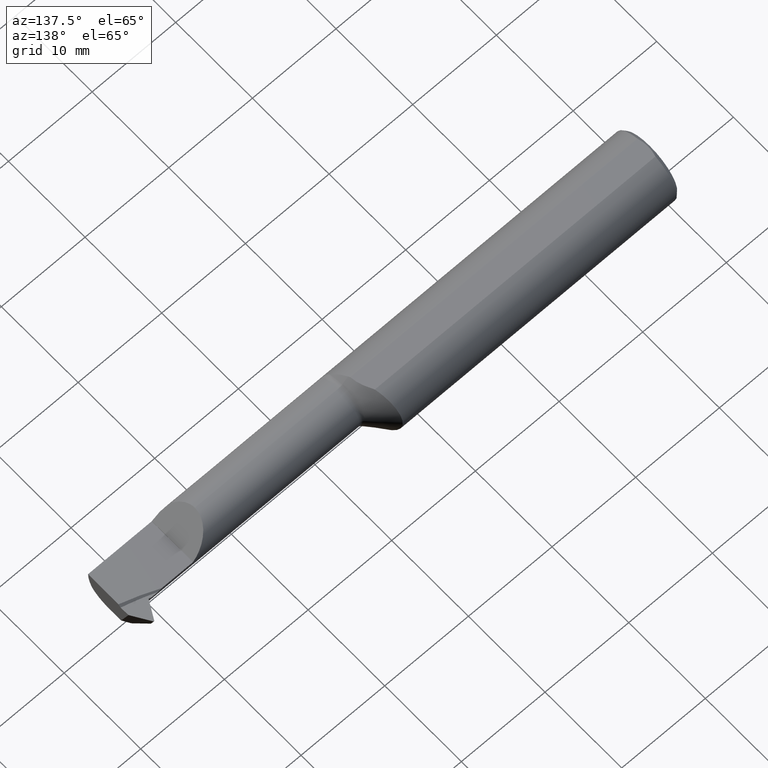
[diagram: clean part render]
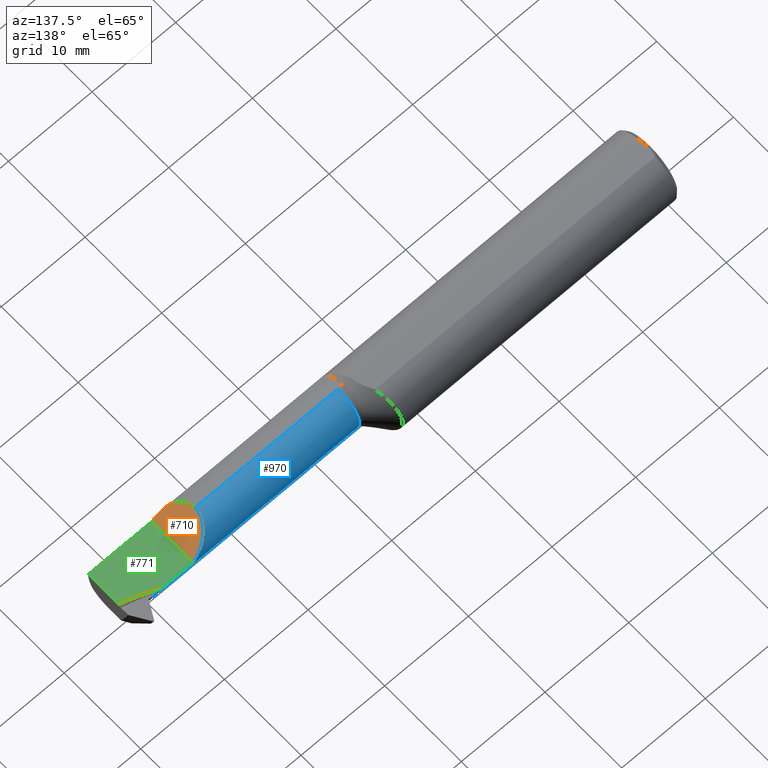
[diagram: same view with three faces highlighted in distinct colors, each labeled with its STEP entity id]
A machine part, auxiliary view with three faces highlighted in distinct colors.
Their STEP definitions:

[orange] entity #710 — the highlighted planar face has unit normal (-0.7071, 0, -0.7071).
#26 = CARTESIAN_POINT ( 'NONE',  ( 2.173926599881184973, -0.1559470758904249188, 0.02697340011881496288 ) ) ;
#39 = DIRECTION ( 'NONE',  ( -0.000000000000000000, 1.000000000000000000, -0.000000000000000000 ) ) ;
#54 = EDGE_CURVE ( 'NONE', #698, #702, #490, .T. ) ;
#76 = CARTESIAN_POINT ( 'NONE',  ( 2.200000000000000178, 0.05589635129138274122, 0.0009000000000000527760 ) ) ;
#124 = CARTESIAN_POINT ( 'NONE',  ( 2.200000000000000178, -0.1560974054877275197, 0.0009000000000000529929 ) ) ;
#154 = VERTEX_POINT ( 'NONE', #124 ) ;
#169 = DIRECTION ( 'NONE',  ( -0.7071067811865513475, 0.000000000000000000, 0.7071067811865435759 ) ) ;
#201 = CARTESIAN_POINT ( 'NONE',  ( 2.125827139386172515, -0.1368622504537206908, 0.07507286061382652254 ) ) ;
#267 = EDGE_CURVE ( 'NONE', #702, #289, #704, .T. ) ;
#289 = VERTEX_POINT ( 'NONE', #76 ) ;
#294 = CARTESIAN_POINT ( 'NONE',  ( 2.089899999999998759, -0.08664595039291325684, 0.1110000000000000292 ) ) ;
#311 = ORIENTED_EDGE ( 'NONE', *, *, #267, .F. ) ;
#346 = CARTESIAN_POINT ( 'NONE',  ( 2.125827139386172515, -0.1368622504537206908, 0.07507286061382652254 ) ) ;
#417 = EDGE_CURVE ( 'NONE', #154, #698, #751, .T. ) ;
#462 = FACE_OUTER_BOUND ( 'NONE', #746, .T. ) ;
#464 = CARTESIAN_POINT ( 'NONE',  ( 2.135397084422194780, 0.05537252664900876170, 0.06550291557780467400 ) ) ;
#490 =( BOUNDED_CURVE ( )  B_SPLINE_CURVE ( 3, ( #201, #699, #294, #945 ),
 .UNSPECIFIED., .F., .T. ) 
 B_SPLINE_CURVE_WITH_KNOTS ( ( 4, 4 ),
 ( 5.455160606174178639, 6.283185307179586232 ),
 .UNSPECIFIED. ) 
 CURVE ( )  GEOMETRIC_REPRESENTATION_ITEM ( )  RATIONAL_B_SPLINE_CURVE ( ( 1.000000000000000000, 0.9436760562907879901, 0.9436760562907879901, 1.000000000000000000 ) ) 
 REPRESENTATION_ITEM ( '' )  );
#521 = LINE ( 'NONE', #605, #591 ) ;
#549 = ORIENTED_EDGE ( 'NONE', *, *, #891, .T. ) ;
#558 = DIRECTION ( 'NONE',  ( -0.7071067811865436870, 0.000000000000000000, -0.7071067811865514585 ) ) ;
#563 = CARTESIAN_POINT ( 'NONE',  ( 2.125827139386172515, -0.1368622504537206908, 0.07507286061382652254 ) ) ;
#591 = VECTOR ( 'NONE', #39, 39.37007874015748143 ) ;
#605 = CARTESIAN_POINT ( 'NONE',  ( 2.200000000000000178, -1.050000000000000044, 0.0009000000000000529929 ) ) ;
#647 = CARTESIAN_POINT ( 'NONE',  ( 2.089899999999998759, 0.009505039226123366408, 0.1110000000000000431 ) ) ;
#698 = VERTEX_POINT ( 'NONE', #563 ) ;
#699 = CARTESIAN_POINT ( 'NONE',  ( 2.102590491667018391, -0.1155267122845506506, 0.09830950833298003622 ) ) ;
#702 = VERTEX_POINT ( 'NONE', #973 ) ;
#704 =( BOUNDED_CURVE ( )  B_SPLINE_CURVE ( 3, ( #884, #647, #464, #877 ),
 .UNSPECIFIED., .F., .T. ) 
 B_SPLINE_CURVE_WITH_KNOTS ( ( 4, 4 ),
 ( 0.000000000000000000, 1.562688129844407303 ),
 .UNSPECIFIED. ) 
 CURVE ( )  GEOMETRIC_REPRESENTATION_ITEM ( )  RATIONAL_B_SPLINE_CURVE ( ( 1.000000000000000000, 0.8066450953084864928, 0.8066450953084864928, 1.000000000000000000 ) ) 
 REPRESENTATION_ITEM ( '' )  );
#707 = CARTESIAN_POINT ( 'NONE',  ( 2.200000000000000178, -1.050000000000000044, 0.0009000000000000529929 ) ) ;
#710 = ADVANCED_FACE ( 'NONE', ( #462 ), #962, .F. ) ;
#742 = CARTESIAN_POINT ( 'NONE',  ( 2.200000000000000178, -0.1560974054877275197, 0.0009000000000000529929 ) ) ;
#746 = EDGE_LOOP ( 'NONE', ( #939, #944, #549, #311 ) ) ;
#751 =( BOUNDED_CURVE ( )  B_SPLINE_CURVE ( 3, ( #742, #26, #901, #346 ),
 .UNSPECIFIED., .F., .T. ) 
 B_SPLINE_CURVE_WITH_KNOTS ( ( 4, 4 ),
 ( 4.718154547241086405, 5.214101826882459711 ),
 .UNSPECIFIED. ) 
 CURVE ( )  GEOMETRIC_REPRESENTATION_ITEM ( )  RATIONAL_B_SPLINE_CURVE ( ( 1.000000000000000000, 0.9796078411043952494, 0.9796078411043952494, 1.000000000000000000 ) ) 
 REPRESENTATION_ITEM ( '' )  );
#877 = CARTESIAN_POINT ( 'NONE',  ( 2.200000000000000178, 0.05589635129138274122, 0.0009000000000000527760 ) ) ;
#884 = CARTESIAN_POINT ( 'NONE',  ( 2.089899999999998759, -0.05509999999999982967, 0.1110000000000000292 ) ) ;
#891 = EDGE_CURVE ( 'NONE', #154, #289, #521, .T. ) ;
#901 = CARTESIAN_POINT ( 'NONE',  ( 2.148687636049084304, -0.1494018870141901323, 0.05221236395091508747 ) ) ;
#939 = ORIENTED_EDGE ( 'NONE', *, *, #54, .F. ) ;
#944 = ORIENTED_EDGE ( 'NONE', *, *, #417, .F. ) ;
#945 = CARTESIAN_POINT ( 'NONE',  ( 2.089899999999998759, -0.05509999999999982967, 0.1110000000000000292 ) ) ;
#962 = PLANE ( 'NONE',  #1015 ) ;
#973 = CARTESIAN_POINT ( 'NONE',  ( 2.089899999999998759, -0.05509999999999982967, 0.1110000000000000292 ) ) ;
#1015 = AXIS2_PLACEMENT_3D ( 'NONE', #707, #558, #169 ) ;

[blue] entity #970 — the highlighted cylindrical surface (edge-blend (fillet) strip) has radius 2.8194 mm, axis along (-1, -0, -0).
#1 = EDGE_CURVE ( 'NONE', #804, #269, #841, .T. ) ;
#4 = VERTEX_POINT ( 'NONE', #954 ) ;
#20 = ORIENTED_EDGE ( 'NONE', *, *, #651, .F. ) ;
#29 = ORIENTED_EDGE ( 'NONE', *, *, #723, .T. ) ;
#30 = CARTESIAN_POINT ( 'NONE',  ( 2.200000000000000178, 0.05590000000000017871, -6.429183357567478880E-17 ) ) ;
#43 = CARTESIAN_POINT ( 'NONE',  ( 1.405000000000000249, -0.05509999999999982967, 0.000000000000000000 ) ) ;
#65 = ORIENTED_EDGE ( 'NONE', *, *, #1, .T. ) ;
#67 =( BOUNDED_CURVE ( )  B_SPLINE_CURVE ( 3, ( #115, #670, #197, #819 ),
 .UNSPECIFIED., .F., .T. ) 
 B_SPLINE_CURVE_WITH_KNOTS ( ( 4, 4 ),
 ( 1.160762633150994816, 1.510701071380387894 ),
 .UNSPECIFIED. ) 
 CURVE ( )  GEOMETRIC_REPRESENTATION_ITEM ( )  RATIONAL_B_SPLINE_CURVE ( ( 1.000000000000000000, 0.9898212650940335644, 0.9898212650940335644, 1.000000000000000000 ) ) 
 REPRESENTATION_ITEM ( '' )  );
#76 = CARTESIAN_POINT ( 'NONE',  ( 2.200000000000000178, 0.05589635129138274122, 0.0009000000000000527760 ) ) ;
#89 = EDGE_CURVE ( 'NONE', #384, #620, #543, .T. ) ;
#95 = CARTESIAN_POINT ( 'NONE',  ( 1.405000000000000249, -0.05509999999999980885, -0.1110000000000000292 ) ) ;
#115 = CARTESIAN_POINT ( 'NONE',  ( 2.392011247420416264, 0.04669892047817528202, -0.04424906540796296611 ) ) ;
#133 = VECTOR ( 'NONE', #418, 39.37007874015748143 ) ;
#134 = ORIENTED_EDGE ( 'NONE', *, *, #267, .T. ) ;
#152 = DIRECTION ( 'NONE',  ( -1.000000000000000000, -0.000000000000000000, -0.000000000000000000 ) ) ;
#163 = CARTESIAN_POINT ( 'NONE',  ( 1.415355339059327200, -0.05509999999999982967, 0.1110000000000000292 ) ) ;
#176 = DIRECTION ( 'NONE',  ( 0.000000000000000000, 0.000000000000000000, 1.000000000000000000 ) ) ;
#178 = LINE ( 'NONE', #95, #133 ) ;
#197 = CARTESIAN_POINT ( 'NONE',  ( 2.396569062922643045, 0.05491800274302387208, -0.01965729358832224785 ) ) ;
#203 =( BOUNDED_CURVE ( )  B_SPLINE_CURVE ( 3, ( #802, #968, #722, #303 ),
 .UNSPECIFIED., .F., .T. ) 
 B_SPLINE_CURVE_WITH_KNOTS ( ( 4, 4 ),
 ( 3.324852225049197862, 4.485614858200198896 ),
 .UNSPECIFIED. ) 
 CURVE ( )  GEOMETRIC_REPRESENTATION_ITEM ( )  RATIONAL_B_SPLINE_CURVE ( ( 1.000000000000000000, 0.8908357456650484174, 0.8908357456650484174, 1.000000000000000000 ) ) 
 REPRESENTATION_ITEM ( '' )  );
#212 = DIRECTION ( 'NONE',  ( 0.000000000000000000, 0.000000000000000000, 1.000000000000000000 ) ) ;
#231 = VERTEX_POINT ( 'NONE', #638 ) ;
#234 = CARTESIAN_POINT ( 'NONE',  ( 2.354114187087922971, 0.05590000000000019259, -0.002304473512366039811 ) ) ;
#248 = EDGE_CURVE ( 'NONE', #702, #269, #569, .T. ) ;
#267 = EDGE_CURVE ( 'NONE', #702, #289, #704, .T. ) ;
#268 = DIRECTION ( 'NONE',  ( -1.000000000000000000, -0.000000000000000000, -0.000000000000000000 ) ) ;
#269 = VERTEX_POINT ( 'NONE', #163 ) ;
#289 = VERTEX_POINT ( 'NONE', #76 ) ;
#299 = ORIENTED_EDGE ( 'NONE', *, *, #672, .T. ) ;
#303 = CARTESIAN_POINT ( 'NONE',  ( 2.410890140113939317, 0.04669892047817530978, -0.04424906540796293836 ) ) ;
#320 = DIRECTION ( 'NONE',  ( 1.000000000000000000, 0.000000000000000000, 0.000000000000000000 ) ) ;
#337 = DIRECTION ( 'NONE',  ( 1.000000000000000000, 0.000000000000000000, 0.000000000000000000 ) ) ;
#340 = EDGE_CURVE ( 'NONE', #231, #889, #67, .T. ) ;
#353 = EDGE_CURVE ( 'NONE', #448, #889, #655, .T. ) ;
#354 = ORIENTED_EDGE ( 'NONE', *, *, #353, .T. ) ;
#356 = VECTOR ( 'NONE', #864, 39.37007874015748143 ) ;
#361 = FACE_OUTER_BOUND ( 'NONE', #963, .T. ) ;
#362 = CARTESIAN_POINT ( 'NONE',  ( 2.348800091824888359, 0.05590000000000020647, -3.145391494286492686E-17 ) ) ;
#384 = VERTEX_POINT ( 'NONE', #30 ) ;
#411 = AXIS2_PLACEMENT_3D ( 'NONE', #43, #1007, #212 ) ;
#418 = DIRECTION ( 'NONE',  ( -1.000000000000000000, -0.000000000000000000, -0.000000000000000000 ) ) ;
#440 = EDGE_CURVE ( 'NONE', #735, #804, #178, .T. ) ;
#448 = VERTEX_POINT ( 'NONE', #509 ) ;
#464 = CARTESIAN_POINT ( 'NONE',  ( 2.135397084422194780, 0.05537252664900876170, 0.06550291557780467400 ) ) ;
#474 = CARTESIAN_POINT ( 'NONE',  ( 2.348800091824888359, 0.05590000000000020647, -3.145391494286492686E-17 ) ) ;
#480 = ORIENTED_EDGE ( 'NONE', *, *, #340, .F. ) ;
#486 = ORIENTED_EDGE ( 'NONE', *, *, #248, .F. ) ;
#504 = VECTOR ( 'NONE', #337, 39.37007874015748143 ) ;
#509 = CARTESIAN_POINT ( 'NONE',  ( 2.364870255512066421, 0.05569962540964205899, -0.006666559013692374344 ) ) ;
#543 = LINE ( 'NONE', #764, #356 ) ;
#569 = LINE ( 'NONE', #1042, #1036 ) ;
#587 = ORIENTED_EDGE ( 'NONE', *, *, #440, .T. ) ;
#620 = VERTEX_POINT ( 'NONE', #362 ) ;
#624 = CARTESIAN_POINT ( 'NONE',  ( 2.364870255512066421, 0.05569962540964205899, -0.006666559013692374344 ) ) ;
#627 = CARTESIAN_POINT ( 'NONE',  ( 1.415355339059327200, -0.05509999999999982967, 0.000000000000000000 ) ) ;
#636 = CARTESIAN_POINT ( 'NONE',  ( 2.359472443399954766, 0.05582854477049873504, -0.004523891880373755170 ) ) ;
#638 = CARTESIAN_POINT ( 'NONE',  ( 2.392011247420416264, 0.04669892047817528202, -0.04424906540796296611 ) ) ;
#647 = CARTESIAN_POINT ( 'NONE',  ( 2.089899999999998759, 0.009505039226123366408, 0.1110000000000000431 ) ) ;
#651 = EDGE_CURVE ( 'NONE', #4, #231, #718, .T. ) ;
#655 = LINE ( 'NONE', #666, #504 ) ;
#660 = AXIS2_PLACEMENT_3D ( 'NONE', #627, #320, #801 ) ;
#666 = CARTESIAN_POINT ( 'NONE',  ( 1.405000000000000249, 0.05569962540964207287, -0.006666559013692298016 ) ) ;
#670 = CARTESIAN_POINT ( 'NONE',  ( 2.394223351265098998, 0.05188691512856393601, -0.03231362112260029174 ) ) ;
#672 = EDGE_CURVE ( 'NONE', #620, #448, #730, .T. ) ;
#673 = ORIENTED_EDGE ( 'NONE', *, *, #89, .T. ) ;
#676 = CIRCLE ( 'NONE', #688, 0.1110000000000000292 ) ;
#688 = AXIS2_PLACEMENT_3D ( 'NONE', #1040, #268, #176 ) ;
#701 = CARTESIAN_POINT ( 'NONE',  ( 1.405000000000000249, 0.04669892047817530284, -0.04424906540796293836 ) ) ;
#702 = VERTEX_POINT ( 'NONE', #973 ) ;
#704 =( BOUNDED_CURVE ( )  B_SPLINE_CURVE ( 3, ( #884, #647, #464, #877 ),
 .UNSPECIFIED., .F., .T. ) 
 B_SPLINE_CURVE_WITH_KNOTS ( ( 4, 4 ),
 ( 0.000000000000000000, 1.562688129844407303 ),
 .UNSPECIFIED. ) 
 CURVE ( )  GEOMETRIC_REPRESENTATION_ITEM ( )  RATIONAL_B_SPLINE_CURVE ( ( 1.000000000000000000, 0.8066450953084864928, 0.8066450953084864928, 1.000000000000000000 ) ) 
 REPRESENTATION_ITEM ( '' )  );
#718 = LINE ( 'NONE', #701, #756 ) ;
#722 = CARTESIAN_POINT ( 'NONE',  ( 2.415503602610843625, 0.02854094621532835691, -0.08602310427151964312 ) ) ;
#723 = EDGE_CURVE ( 'NONE', #289, #384, #676, .T. ) ;
#730 = B_SPLINE_CURVE_WITH_KNOTS ( 'NONE', 3,
 ( #474, #234, #636, #624 ),
 .UNSPECIFIED., .F., .F.,
 ( 4, 4 ),
 ( 0.01393134452528264206, 0.01437220969035480668 ),
 .UNSPECIFIED. ) ;
#735 = VERTEX_POINT ( 'NONE', #833 ) ;
#753 = CARTESIAN_POINT ( 'NONE',  ( 2.398976753261663486, 0.05569962540964209369, -0.006666559013692291077 ) ) ;
#756 = VECTOR ( 'NONE', #152, 39.37007874015748143 ) ;
#764 = CARTESIAN_POINT ( 'NONE',  ( 1.405000000000000249, 0.05590000000000019953, -6.429183357567480113E-17 ) ) ;
#801 = DIRECTION ( 'NONE',  ( 0.000000000000000000, 0.000000000000000000, 1.000000000000000000 ) ) ;
#802 = CARTESIAN_POINT ( 'NONE',  ( 2.419640730573871856, -0.05509999999999984355, -0.1109999999999999737 ) ) ;
#804 = VERTEX_POINT ( 'NONE', #991 ) ;
#819 = CARTESIAN_POINT ( 'NONE',  ( 2.398976753261663486, 0.05569962540964209369, -0.006666559013692291077 ) ) ;
#833 = CARTESIAN_POINT ( 'NONE',  ( 2.419640730573871856, -0.05509999999999984355, -0.1109999999999999737 ) ) ;
#841 = CIRCLE ( 'NONE', #660, 0.1110000000000000292 ) ;
#864 = DIRECTION ( 'NONE',  ( 1.000000000000000000, 0.000000000000000000, 0.000000000000000000 ) ) ;
#877 = CARTESIAN_POINT ( 'NONE',  ( 2.200000000000000178, 0.05589635129138274122, 0.0009000000000000527760 ) ) ;
#884 = CARTESIAN_POINT ( 'NONE',  ( 2.089899999999998759, -0.05509999999999982967, 0.1110000000000000292 ) ) ;
#889 = VERTEX_POINT ( 'NONE', #753 ) ;
#895 = DIRECTION ( 'NONE',  ( -1.000000000000000000, -0.000000000000000000, -0.000000000000000000 ) ) ;
#932 = CYLINDRICAL_SURFACE ( 'NONE', #411, 0.1110000000000000292 ) ;
#954 = CARTESIAN_POINT ( 'NONE',  ( 2.410890140113939317, 0.04669892047817530978, -0.04424906540796293836 ) ) ;
#963 = EDGE_LOOP ( 'NONE', ( #974, #587, #65, #486, #134, #29, #673, #299, #354, #480, #20 ) ) ;
#968 = CARTESIAN_POINT ( 'NONE',  ( 2.418777902616022768, -0.009550221160754634661, -0.1110000000000000570 ) ) ;
#970 = ADVANCED_FACE ( 'NONE', ( #361 ), #932, .T. ) ;
#973 = CARTESIAN_POINT ( 'NONE',  ( 2.089899999999998759, -0.05509999999999982967, 0.1110000000000000292 ) ) ;
#974 = ORIENTED_EDGE ( 'NONE', *, *, #1018, .F. ) ;
#991 = CARTESIAN_POINT ( 'NONE',  ( 1.415355339059327200, -0.05509999999999980885, -0.1110000000000000292 ) ) ;
#1007 = DIRECTION ( 'NONE',  ( -1.000000000000000000, -0.000000000000000000, -0.000000000000000000 ) ) ;
#1018 = EDGE_CURVE ( 'NONE', #735, #4, #203, .T. ) ;
#1036 = VECTOR ( 'NONE', #895, 39.37007874015748143 ) ;
#1040 = CARTESIAN_POINT ( 'NONE',  ( 2.200000000000000178, -0.05509999999999982967, 0.000000000000000000 ) ) ;
#1042 = CARTESIAN_POINT ( 'NONE',  ( 1.405000000000000249, -0.05509999999999982967, 0.1110000000000000292 ) ) ;

[green] entity #771 — the highlighted planar face has unit normal (-0, 0, -1).
#5 = CARTESIAN_POINT ( 'NONE',  ( 2.500000000000000000, -0.1560999999999999888, -6.429183357567480113E-17 ) ) ;
#15 = ORIENTED_EDGE ( 'NONE', *, *, #220, .F. ) ;
#28 = PLANE ( 'NONE',  #772 ) ;
#30 = CARTESIAN_POINT ( 'NONE',  ( 2.200000000000000178, 0.05590000000000017871, -6.429183357567478880E-17 ) ) ;
#75 = ORIENTED_EDGE ( 'NONE', *, *, #89, .F. ) ;
#85 = ORIENTED_EDGE ( 'NONE', *, *, #918, .T. ) ;
#89 = EDGE_CURVE ( 'NONE', #384, #620, #543, .T. ) ;
#90 = DIRECTION ( 'NONE',  ( -0.000000000000000000, 0.000000000000000000, -1.000000000000000000 ) ) ;
#98 = CARTESIAN_POINT ( 'NONE',  ( 2.200000000000000178, 0.2999999999999999889, -6.429183357567480113E-17 ) ) ;
#138 = ORIENTED_EDGE ( 'NONE', *, *, #1034, .F. ) ;
#144 = CARTESIAN_POINT ( 'NONE',  ( 2.448296298316509745, 0.01515540002212511887, -6.829619984160658046E-17 ) ) ;
#146 = CARTESIAN_POINT ( 'NONE',  ( 2.500000000000000000, 0.0003894951217566267640, -6.429183357567480113E-17 ) ) ;
#150 = CARTESIAN_POINT ( 'NONE',  ( 2.348800091824888359, 0.05590000000000020647, -3.145391494286492686E-17 ) ) ;
#184 = FACE_OUTER_BOUND ( 'NONE', #445, .T. ) ;
#220 = EDGE_CURVE ( 'NONE', #471, #316, #319, .T. ) ;
#270 = CARTESIAN_POINT ( 'NONE',  ( 2.200000000000000178, -0.1560999999999999333, -6.429183357567478880E-17 ) ) ;
#316 = VERTEX_POINT ( 'NONE', #270 ) ;
#319 = LINE ( 'NONE', #5, #423 ) ;
#331 = LINE ( 'NONE', #98, #844 ) ;
#356 = VECTOR ( 'NONE', #864, 39.37007874015748143 ) ;
#362 = CARTESIAN_POINT ( 'NONE',  ( 2.348800091824888359, 0.05590000000000020647, -3.145391494286492686E-17 ) ) ;
#384 = VERTEX_POINT ( 'NONE', #30 ) ;
#403 = DIRECTION ( 'NONE',  ( -1.000000000000000000, -0.000000000000000000, -0.000000000000000000 ) ) ;
#423 = VECTOR ( 'NONE', #403, 39.37007874015748143 ) ;
#428 = CARTESIAN_POINT ( 'NONE',  ( 2.200000000000000178, 0.2999999999999999889, -6.429183357567480113E-17 ) ) ;
#445 = EDGE_LOOP ( 'NONE', ( #138, #75, #555, #15, #85 ) ) ;
#471 = VERTEX_POINT ( 'NONE', #1020 ) ;
#543 = LINE ( 'NONE', #764, #356 ) ;
#555 = ORIENTED_EDGE ( 'NONE', *, *, #850, .F. ) ;
#598 = CARTESIAN_POINT ( 'NONE',  ( 2.500000000000000000, 0.2999999999999999889, -6.429183357567480113E-17 ) ) ;
#620 = VERTEX_POINT ( 'NONE', #362 ) ;
#629 = CARTESIAN_POINT ( 'NONE',  ( 2.397805947826121553, 0.03369208354943886707, -6.829619984160658046E-17 ) ) ;
#681 = LINE ( 'NONE', #598, #795 ) ;
#705 = VERTEX_POINT ( 'NONE', #146 ) ;
#712 = CARTESIAN_POINT ( 'NONE',  ( 2.500000000000000000, 0.0003894951217566267640, -6.429183357567480113E-17 ) ) ;
#764 = CARTESIAN_POINT ( 'NONE',  ( 1.405000000000000249, 0.05590000000000019953, -6.429183357567480113E-17 ) ) ;
#771 = ADVANCED_FACE ( 'NONE', ( #184 ), #28, .F. ) ;
#772 = AXIS2_PLACEMENT_3D ( 'NONE', #428, #90, #913 ) ;
#795 = VECTOR ( 'NONE', #942, 39.37007874015748143 ) ;
#832 =( BOUNDED_CURVE ( )  B_SPLINE_CURVE ( 3, ( #150, #629, #144, #712 ),
 .UNSPECIFIED., .F., .T. ) 
 B_SPLINE_CURVE_WITH_KNOTS ( ( 4, 4 ),
 ( 5.860073786056362977, 6.006669901837729419 ),
 .UNSPECIFIED. ) 
 CURVE ( )  GEOMETRIC_REPRESENTATION_ITEM ( )  RATIONAL_B_SPLINE_CURVE ( ( 1.000000000000000000, 0.9982099332286731297, 0.9982099332286731297, 1.000000000000000000 ) ) 
 REPRESENTATION_ITEM ( '' )  );
#844 = VECTOR ( 'NONE', #904, 39.37007874015748143 ) ;
#850 = EDGE_CURVE ( 'NONE', #316, #384, #331, .T. ) ;
#864 = DIRECTION ( 'NONE',  ( 1.000000000000000000, 0.000000000000000000, 0.000000000000000000 ) ) ;
#904 = DIRECTION ( 'NONE',  ( -0.000000000000000000, 1.000000000000000000, -0.000000000000000000 ) ) ;
#913 = DIRECTION ( 'NONE',  ( -1.000000000000000000, 0.000000000000000000, 0.000000000000000000 ) ) ;
#918 = EDGE_CURVE ( 'NONE', #471, #705, #681, .T. ) ;
#942 = DIRECTION ( 'NONE',  ( -0.000000000000000000, 1.000000000000000000, -0.000000000000000000 ) ) ;
#1020 = CARTESIAN_POINT ( 'NONE',  ( 2.500000000000000000, -0.1560999999999998500, -6.429183357567480113E-17 ) ) ;
#1034 = EDGE_CURVE ( 'NONE', #620, #705, #832, .T. ) ;